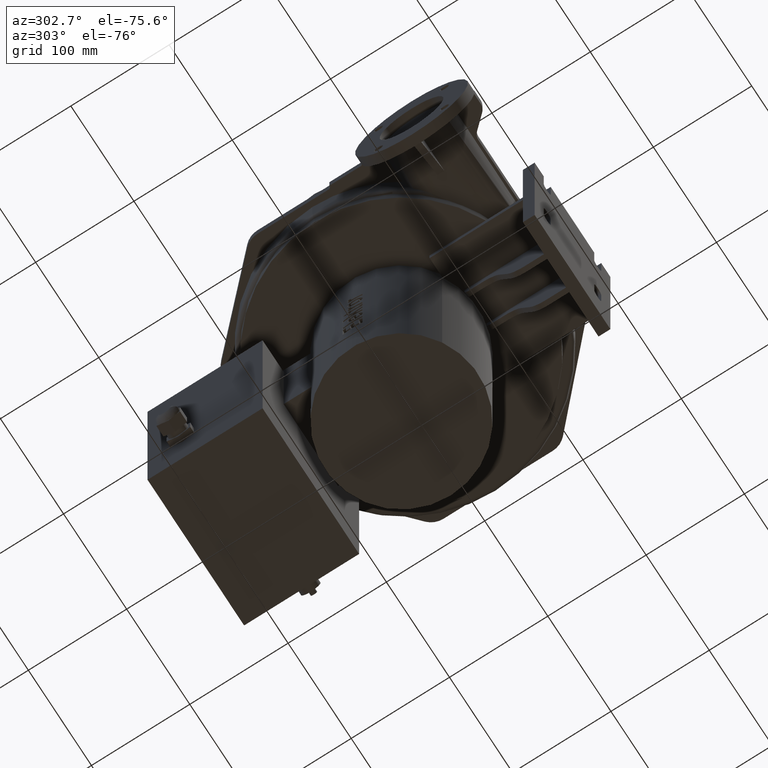
[diagram: clean part render]
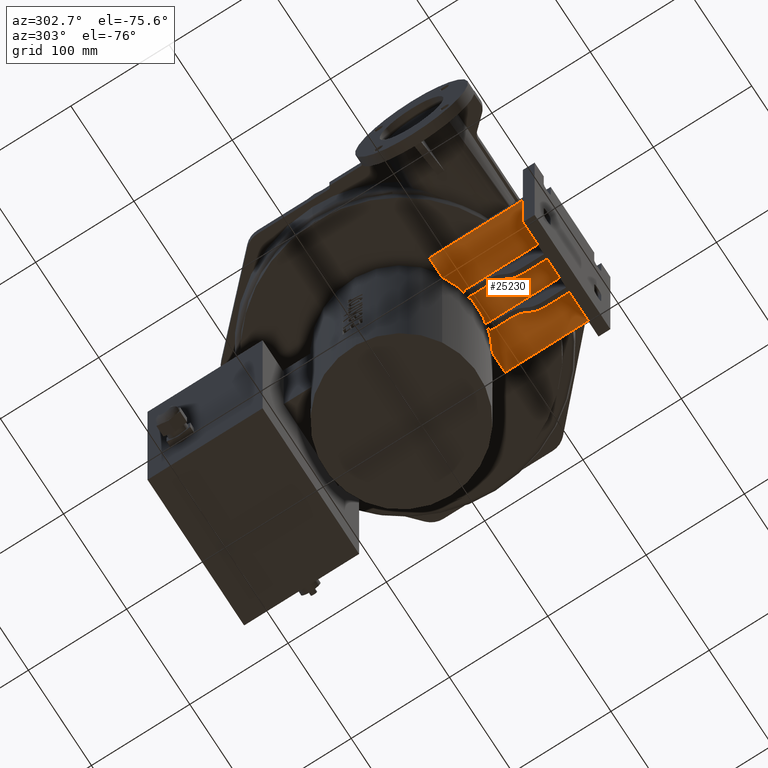
[diagram: same view with one face highlighted and labeled with its STEP entity id]
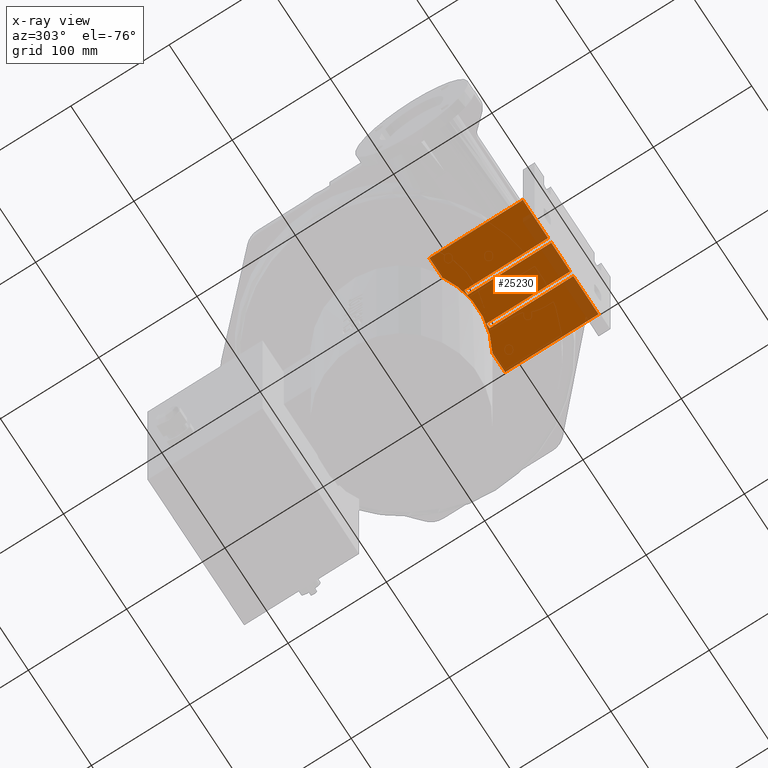
[diagram: x-ray of the same camera — body ghosted, the highlighted face saturated]
A machine part, auxiliary view. The second image highlights one B-rep face of the part: STEP entity #25230.
The next image is the same camera in x-ray: the body ghosted, the highlighted face saturated — about 10% of this face is hidden behind the body in this view.
In plain terms, the highlighted planar face has unit normal (0, 0, 1).
Its self-contained STEP definition (entity closure, byte-faithful):
#11517=CARTESIAN_POINT('',(39.937451095430916,53.500000000000099,-13.500000000000014));
#11518=VERTEX_POINT('',#11517);
#11527=CARTESIAN_POINT('',(-39.937451095430909,53.500000000000099,-13.500000000000014));
#11528=VERTEX_POINT('',#11527);
#11529=CARTESIAN_POINT('',(3.184085E-015,120.5000000000006,-13.500000000000014));
#11530=DIRECTION('',(0.0,0.0,1.0));
#11531=DIRECTION('',(-1.0,0.0,0.0));
#11532=AXIS2_PLACEMENT_3D('',#11529,#11530,#11531);
#11533=CIRCLE('',#11532,78.0);
#11534=EDGE_CURVE('',#11528,#11518,#11533,.T.);
#18239=CARTESIAN_POINT('',(-60.000000000000007,53.500000000000099,-13.500000000000023));
#18240=VERTEX_POINT('',#18239);
#18241=CARTESIAN_POINT('',(-39.937451095430902,53.500000000000099,-13.500000000000014));
#18242=DIRECTION('',(-1.0,0.0,0.0));
#18243=VECTOR('',#18242,20.062548904569105);
#18244=LINE('',#18241,#18243);
#18245=EDGE_CURVE('',#11528,#18240,#18244,.T.);
#25127=CARTESIAN_POINT('',(-6.661338E-015,6.000000000000103,-13.500000000000023));
#25128=DIRECTION('',(0.0,0.0,1.0));
#25129=DIRECTION('',(1.0,0.0,0.0));
#25130=AXIS2_PLACEMENT_3D('',#25127,#25128,#25129);
#25131=PLANE('',#25130);
#25132=ORIENTED_EDGE('',*,*,#11534,.T.);
#25133=CARTESIAN_POINT('',(60.000000000000007,53.500000000000099,-13.500000000000023));
#25134=VERTEX_POINT('',#25133);
#25135=CARTESIAN_POINT('',(60.000000000000007,53.500000000000099,-13.500000000000014));
#25136=DIRECTION('',(-1.0,0.0,0.0));
#25137=VECTOR('',#25136,20.062548904569098);
#25138=LINE('',#25135,#25137);
#25139=EDGE_CURVE('',#25134,#11518,#25138,.T.);
#25140=ORIENTED_EDGE('',*,*,#25139,.F.);
#25141=CARTESIAN_POINT('',(59.999999999999993,-41.499999999999915,-13.500000000000023));
#25142=VERTEX_POINT('',#25141);
#25143=CARTESIAN_POINT('',(59.999999999999993,-41.499999999999915,-13.500000000000014));
#25144=DIRECTION('',(0.0,1.0,0.0));
#25145=VECTOR('',#25144,95.000000000000014);
#25146=LINE('',#25143,#25145);
#25147=EDGE_CURVE('',#25142,#25134,#25146,.T.);
#25148=ORIENTED_EDGE('',*,*,#25147,.F.);
#25149=CARTESIAN_POINT('',(19.999999999999993,-41.499999999999915,-13.500000000000014));
#25150=VERTEX_POINT('',#25149);
#25151=CARTESIAN_POINT('',(19.999999999999993,-41.500000000000021,-13.500000000000023));
#25152=DIRECTION('',(1.0,0.0,0.0));
#25153=VECTOR('',#25152,40.0);
#25154=LINE('',#25151,#25153);
#25155=EDGE_CURVE('',#25150,#25142,#25154,.T.);
#25156=ORIENTED_EDGE('',*,*,#25155,.F.);
#25157=CARTESIAN_POINT('',(19.999999999999993,43.700000000000074,-13.500000000000023));
#25158=VERTEX_POINT('',#25157);
#25159=CARTESIAN_POINT('',(19.999999999999993,43.700000000000074,-13.500000000000023));
#25160=DIRECTION('',(0.0,-1.0,0.0));
#25161=VECTOR('',#25160,85.199999999999989);
#25162=LINE('',#25159,#25161);
#25163=EDGE_CURVE('',#25158,#25150,#25162,.T.);
#25164=ORIENTED_EDGE('',*,*,#25163,.F.);
#25165=CARTESIAN_POINT('',(14.999999999999991,43.700000000000074,-13.500000000000023));
#25166=VERTEX_POINT('',#25165);
#25167=CARTESIAN_POINT('',(14.999999999999993,43.700000000000074,-13.500000000000023));
#25168=DIRECTION('',(1.0,0.0,0.0));
#25169=VECTOR('',#25168,5.0);
#25170=LINE('',#25167,#25169);
#25171=EDGE_CURVE('',#25166,#25158,#25170,.T.);
#25172=ORIENTED_EDGE('',*,*,#25171,.F.);
#25173=CARTESIAN_POINT('',(14.999999999999991,-41.499999999999915,-13.500000000000014));
#25174=VERTEX_POINT('',#25173);
#25175=CARTESIAN_POINT('',(14.999999999999989,-41.499999999999915,-13.500000000000023));
#25176=DIRECTION('',(0.0,1.0,0.0));
#25177=VECTOR('',#25176,85.199999999999989);
#25178=LINE('',#25175,#25177);
#25179=EDGE_CURVE('',#25174,#25166,#25178,.T.);
#25180=ORIENTED_EDGE('',*,*,#25179,.F.);
#25181=CARTESIAN_POINT('',(-15.000000000000009,-41.499999999999915,-13.500000000000014));
#25182=VERTEX_POINT('',#25181);
#25183=CARTESIAN_POINT('',(-15.000000000000007,-41.500000000000021,-13.500000000000023));
#25184=DIRECTION('',(1.0,0.0,0.0));
#25185=VECTOR('',#25184,30.0);
#25186=LINE('',#25183,#25185);
#25187=EDGE_CURVE('',#25182,#25174,#25186,.T.);
#25188=ORIENTED_EDGE('',*,*,#25187,.F.);
#25189=CARTESIAN_POINT('',(-15.000000000000009,43.700000000000074,-13.500000000000023));
#25190=VERTEX_POINT('',#25189);
#25191=CARTESIAN_POINT('',(-15.000000000000007,43.700000000000074,-13.500000000000023));
#25192=DIRECTION('',(0.0,-1.0,0.0));
#25193=VECTOR('',#25192,85.199999999999989);
#25194=LINE('',#25191,#25193);
#25195=EDGE_CURVE('',#25190,#25182,#25194,.T.);
#25196=ORIENTED_EDGE('',*,*,#25195,.F.);
#25197=CARTESIAN_POINT('',(-20.000000000000007,43.700000000000074,-13.500000000000023));
#25198=VERTEX_POINT('',#25197);
#25199=CARTESIAN_POINT('',(-20.000000000000007,43.700000000000074,-13.500000000000023));
#25200=DIRECTION('',(1.0,0.0,0.0));
#25201=VECTOR('',#25200,5.0);
#25202=LINE('',#25199,#25201);
#25203=EDGE_CURVE('',#25198,#25190,#25202,.T.);
#25204=ORIENTED_EDGE('',*,*,#25203,.F.);
#25205=CARTESIAN_POINT('',(-20.000000000000007,-41.499999999999915,-13.500000000000014));
#25206=VERTEX_POINT('',#25205);
#25207=CARTESIAN_POINT('',(-20.000000000000007,-41.499999999999915,-13.500000000000023));
#25208=DIRECTION('',(0.0,1.0,0.0));
#25209=VECTOR('',#25208,85.199999999999989);
#25210=LINE('',#25207,#25209);
#25211=EDGE_CURVE('',#25206,#25198,#25210,.T.);
#25212=ORIENTED_EDGE('',*,*,#25211,.F.);
#25213=CARTESIAN_POINT('',(-60.000000000000007,-41.499999999999915,-13.500000000000023));
#25214=VERTEX_POINT('',#25213);
#25215=CARTESIAN_POINT('',(-60.000000000000007,-41.500000000000021,-13.500000000000023));
#25216=DIRECTION('',(1.0,0.0,0.0));
#25217=VECTOR('',#25216,40.0);
#25218=LINE('',#25215,#25217);
#25219=EDGE_CURVE('',#25214,#25206,#25218,.T.);
#25220=ORIENTED_EDGE('',*,*,#25219,.F.);
#25221=CARTESIAN_POINT('',(-60.000000000000007,53.500000000000099,-13.500000000000014));
#25222=DIRECTION('',(0.0,-1.0,0.0));
#25223=VECTOR('',#25222,95.000000000000014);
#25224=LINE('',#25221,#25223);
#25225=EDGE_CURVE('',#18240,#25214,#25224,.T.);
#25226=ORIENTED_EDGE('',*,*,#25225,.F.);
#25227=ORIENTED_EDGE('',*,*,#18245,.F.);
#25228=EDGE_LOOP('',(#25132,#25140,#25148,#25156,#25164,#25172,#25180,#25188,#25196,#25204,#25212,#25220,#25226,#25227));
#25229=FACE_OUTER_BOUND('',#25228,.T.);
#25230=ADVANCED_FACE('',(#25229),#25131,.F.);